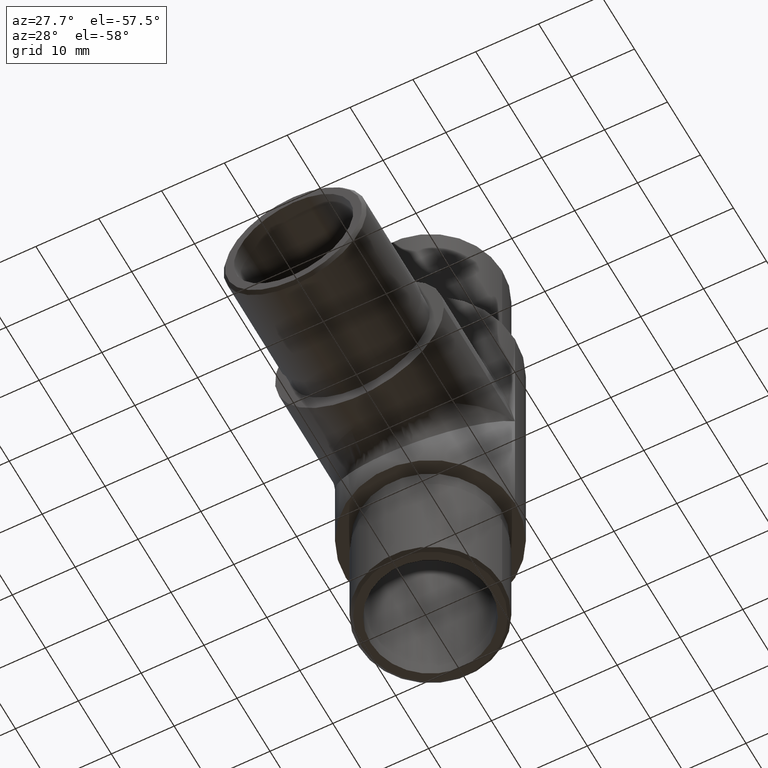
[diagram: clean part render]
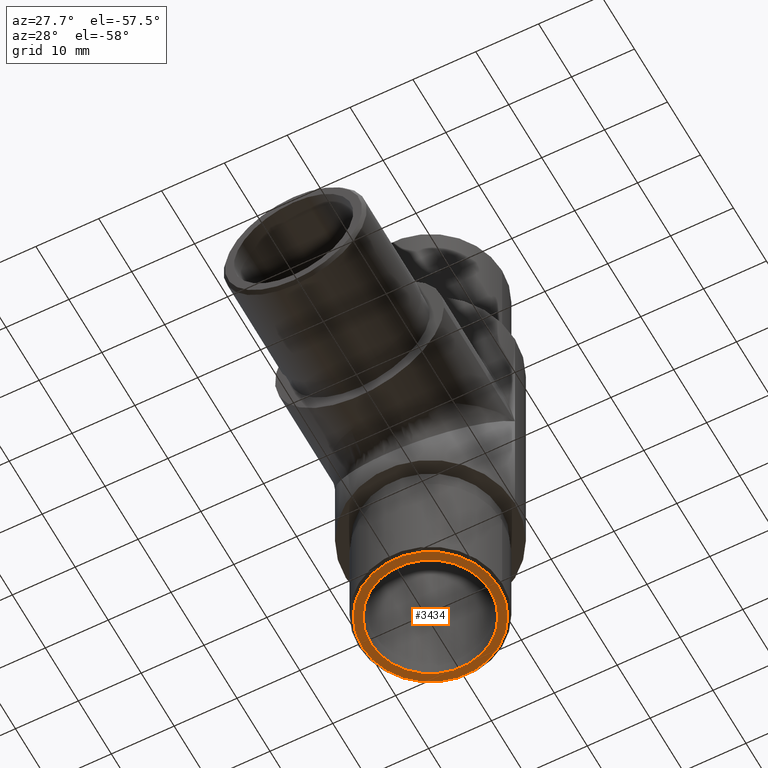
[diagram: same view with one face highlighted and labeled with its STEP entity id]
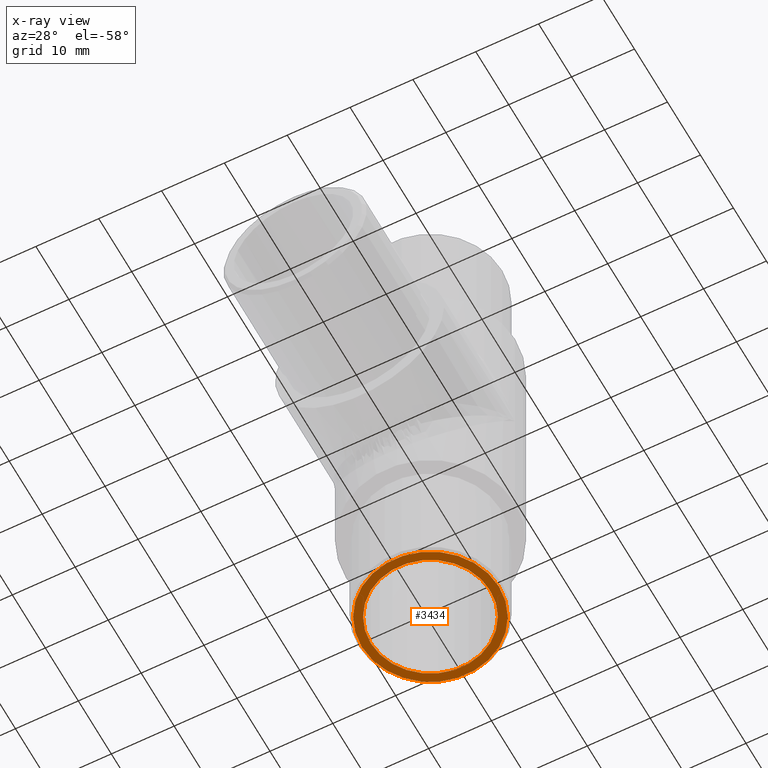
[diagram: x-ray of the same camera — body ghosted, the highlighted face saturated]
A machine part, auxiliary view. The second image highlights one B-rep face of the part: STEP entity #3434.
The next image is the same camera in x-ray: the body ghosted, the highlighted face saturated — about 0% of this face is hidden behind the body in this view.
In plain terms, the highlighted planar face has unit normal (0, 0, -1).
Its self-contained STEP definition (entity closure, byte-faithful):
#546 = AXIS2_PLACEMENT_3D ( 'NONE', #7676, #8752, #3339 ) ;
#677 = CARTESIAN_POINT ( 'NONE',  ( -10.89999999999999900, 41.50000000000000000, -41.49999999999999300 ) ) ;
#899 = DIRECTION ( 'NONE',  ( 0.0000000000000000000, 0.0000000000000000000, -1.000000000000000000 ) ) ;
#1776 = DIRECTION ( 'NONE',  ( 0.0000000000000000000, 0.0000000000000000000, -1.000000000000000000 ) ) ;
#1930 = CIRCLE ( 'NONE', #13211, 10.89999999999999900 ) ;
#2000 = DIRECTION ( 'NONE',  ( -1.000000000000000000, 0.0000000000000000000, 0.0000000000000000000 ) ) ;
#2207 = EDGE_CURVE ( 'NONE', #4853, #4853, #9864, .T. ) ;
#2305 = VERTEX_POINT ( 'NONE', #677 ) ;
#2487 = FACE_BOUND ( 'NONE', #10495, .T. ) ;
#3339 = DIRECTION ( 'NONE',  ( 1.000000000000000000, 0.0000000000000000000, 0.0000000000000000000 ) ) ;
#3382 = EDGE_LOOP ( 'NONE', ( #12034 ) ) ;
#3434 = ADVANCED_FACE ( 'NONE', ( #3842, #2487 ), #8206, .T. ) ;
#3842 = FACE_OUTER_BOUND ( 'NONE', #3382, .T. ) ;
#4853 = VERTEX_POINT ( 'NONE', #12785 ) ;
#5160 = AXIS2_PLACEMENT_3D ( 'NONE', #6027, #1776, #7256 ) ;
#6027 = CARTESIAN_POINT ( 'NONE',  ( 0.0000000000000000000, 41.50000000000000000, -41.49999999999999300 ) ) ;
#6251 = CARTESIAN_POINT ( 'NONE',  ( 0.0000000000000000000, 41.50000000000000000, -41.49999999999999300 ) ) ;
#7256 = DIRECTION ( 'NONE',  ( 1.000000000000000000, 0.0000000000000000000, 0.0000000000000000000 ) ) ;
#7409 = EDGE_CURVE ( 'NONE', #2305, #2305, #1930, .T. ) ;
#7676 = CARTESIAN_POINT ( 'NONE',  ( 0.0000000000000000000, 41.50000000000000000, -41.49999999999999300 ) ) ;
#8206 = PLANE ( 'NONE',  #5160 ) ;
#8208 = ORIENTED_EDGE ( 'NONE', *, *, #2207, .T. ) ;
#8752 = DIRECTION ( 'NONE',  ( -0.0000000000000000000, -0.0000000000000000000, 1.000000000000000000 ) ) ;
#9864 = CIRCLE ( 'NONE', #546, 9.500000000000000000 ) ;
#10495 = EDGE_LOOP ( 'NONE', ( #8208 ) ) ;
#12034 = ORIENTED_EDGE ( 'NONE', *, *, #7409, .T. ) ;
#12785 = CARTESIAN_POINT ( 'NONE',  ( 9.500000000000000000, 41.50000000000000000, -41.49999999999999300 ) ) ;
#13211 = AXIS2_PLACEMENT_3D ( 'NONE', #6251, #899, #2000 ) ;